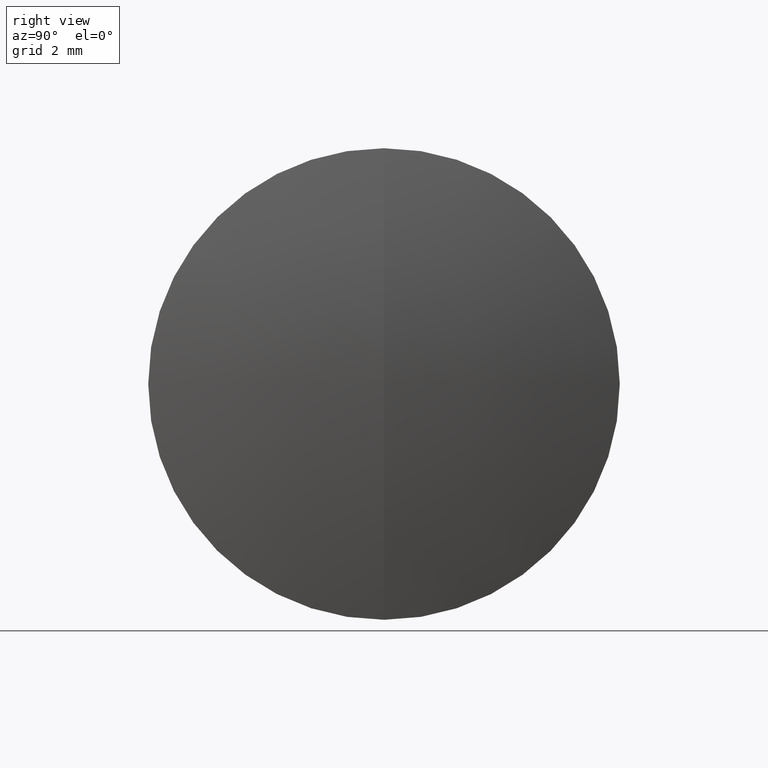
[diagram: clean part render]
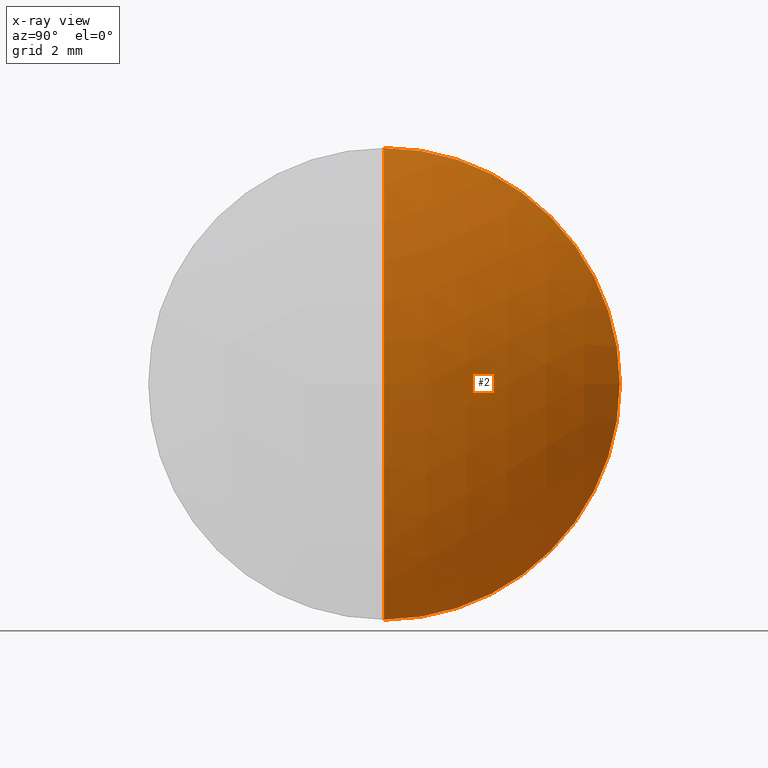
[diagram: x-ray — body ghosted, one internal face saturated and labeled with its STEP entity id]
A machine part, right view, then the same camera in x-ray: the body is ghosted and one INTERNAL B-rep face — a face not visible from any outside direction — is saturated and labeled: STEP entity #2.
In plain terms, the highlighted spherical surface has radius 8.832 mm.
Its self-contained STEP definition (entity closure, byte-faithful):
#2 = ADVANCED_FACE ( 'NONE', ( #121 ), #147, .T. ) ;
#14 = DIRECTION ( 'NONE',  ( 0.0000000000000000000, 0.0000000000000000000, 1.000000000000000000 ) ) ;
#27 = CARTESIAN_POINT ( 'NONE',  ( 0.6409706677806791300, 0.0000000000000000000, 0.0000000000000000000 ) ) ;
#36 = VERTEX_POINT ( 'NONE', #93 ) ;
#39 = ORIENTED_EDGE ( 'NONE', *, *, #113, .F. ) ;
#53 = DIRECTION ( 'NONE',  ( 0.0000000000000000000, -1.224646799147353200E-016, 1.000000000000000000 ) ) ;
#58 = AXIS2_PLACEMENT_3D ( 'NONE', #60, #116, #14 ) ;
#60 = CARTESIAN_POINT ( 'NONE',  ( -6.639429321230914600, 0.0000000000000000000, 1.084202172485504400E-016 ) ) ;
#62 = EDGE_LOOP ( 'NONE', ( #39, #96, #247 ) ) ;
#73 = VERTEX_POINT ( 'NONE', #303 ) ;
#78 = DIRECTION ( 'NONE',  ( 0.0000000000000000000, 0.0000000000000000000, 1.000000000000000000 ) ) ;
#82 = CARTESIAN_POINT ( 'NONE',  ( -6.639429321230914600, 0.0000000000000000000, 1.084202172485504400E-016 ) ) ;
#83 = DIRECTION ( 'NONE',  ( 0.0000000000000000000, -1.000000000000000000, 0.0000000000000000000 ) ) ;
#93 = CARTESIAN_POINT ( 'NONE',  ( 2.192570678769086600, 0.0000000000000000000, 6.492242437520217000E-016 ) ) ;
#96 = ORIENTED_EDGE ( 'NONE', *, *, #153, .T. ) ;
#113 = EDGE_CURVE ( 'NONE', #36, #299, #259, .T. ) ;
#116 = DIRECTION ( 'NONE',  ( 0.0000000000000000000, 1.000000000000000000, 0.0000000000000000000 ) ) ;
#121 = FACE_OUTER_BOUND ( 'NONE', #62, .T. ) ;
#147 = SPHERICAL_SURFACE ( 'NONE', #58, 8.832000000000000700 ) ;
#153 = EDGE_CURVE ( 'NONE', #36, #73, #196, .T. ) ;
#196 = CIRCLE ( 'NONE', #291, 8.832000000000000700 ) ;
#202 = EDGE_CURVE ( 'NONE', #299, #73, #250, .T. ) ;
#240 = DIRECTION ( 'NONE',  ( -0.0000000000000000000, 1.000000000000000000, 1.224646799147353200E-016 ) ) ;
#242 = DIRECTION ( 'NONE',  ( 0.0000000000000000000, 0.0000000000000000000, -1.000000000000000000 ) ) ;
#247 = ORIENTED_EDGE ( 'NONE', *, *, #202, .F. ) ;
#250 = CIRCLE ( 'NONE', #293, 5.000000000000000000 ) ;
#257 = DIRECTION ( 'NONE',  ( -1.000000000000000000, -0.0000000000000000000, -0.0000000000000000000 ) ) ;
#259 = CIRCLE ( 'NONE', #327, 8.832000000000000700 ) ;
#262 = CARTESIAN_POINT ( 'NONE',  ( 0.6409706677806791300, 0.0000000000000000000, 5.000000000000000000 ) ) ;
#274 = CARTESIAN_POINT ( 'NONE',  ( -6.639429321230914600, 0.0000000000000000000, 1.084202172485504400E-016 ) ) ;
#291 = AXIS2_PLACEMENT_3D ( 'NONE', #82, #240, #53 ) ;
#293 = AXIS2_PLACEMENT_3D ( 'NONE', #27, #257, #78 ) ;
#299 = VERTEX_POINT ( 'NONE', #262 ) ;
#303 = CARTESIAN_POINT ( 'NONE',  ( 0.6409706677806791300, 6.123233995736766300E-016, -5.000000000000000000 ) ) ;
#327 = AXIS2_PLACEMENT_3D ( 'NONE', #274, #83, #242 ) ;